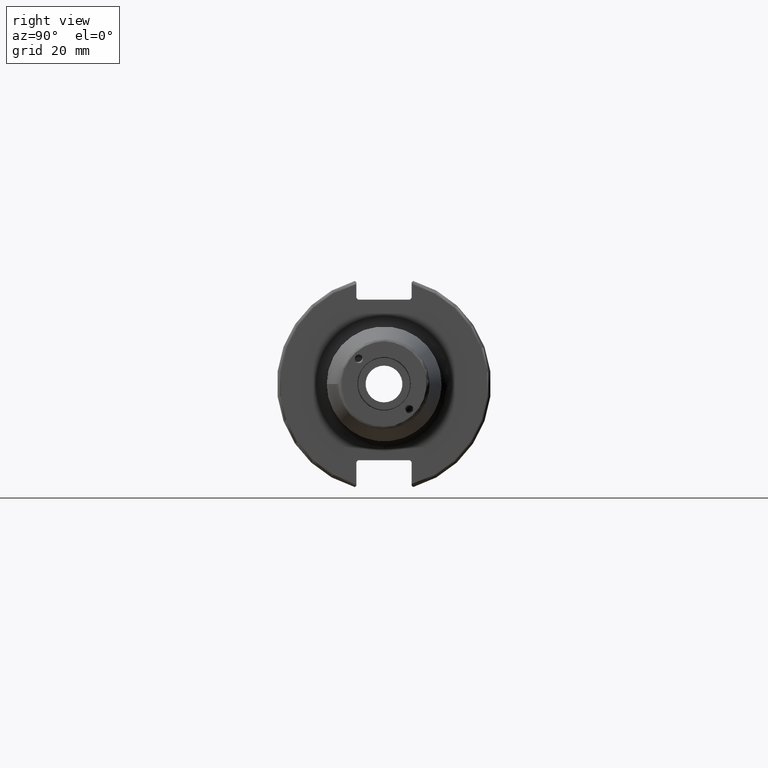
[diagram: clean part render]
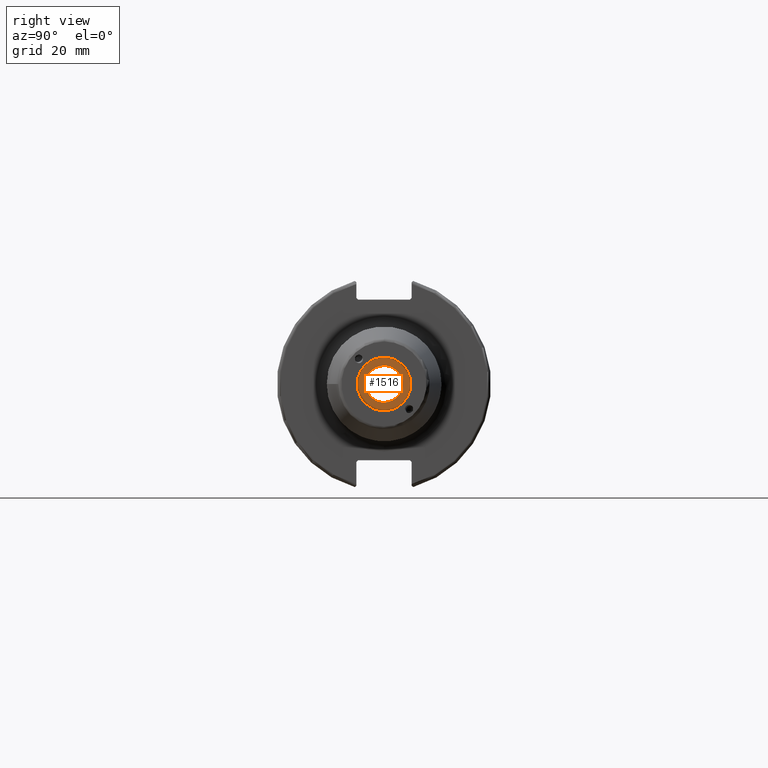
[diagram: same view with one face highlighted and labeled with its STEP entity id]
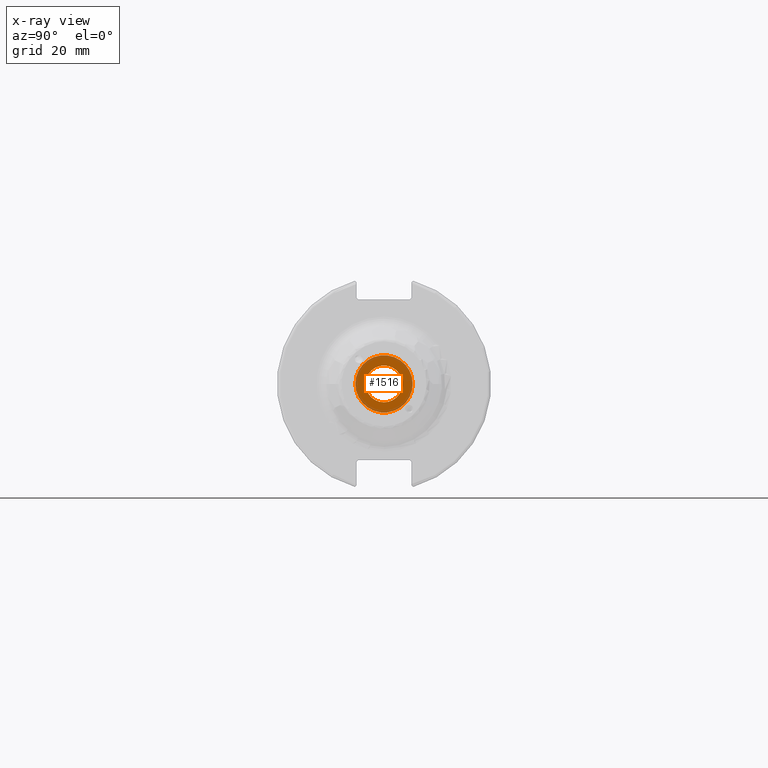
[diagram: x-ray of the same camera — body ghosted, the highlighted face saturated]
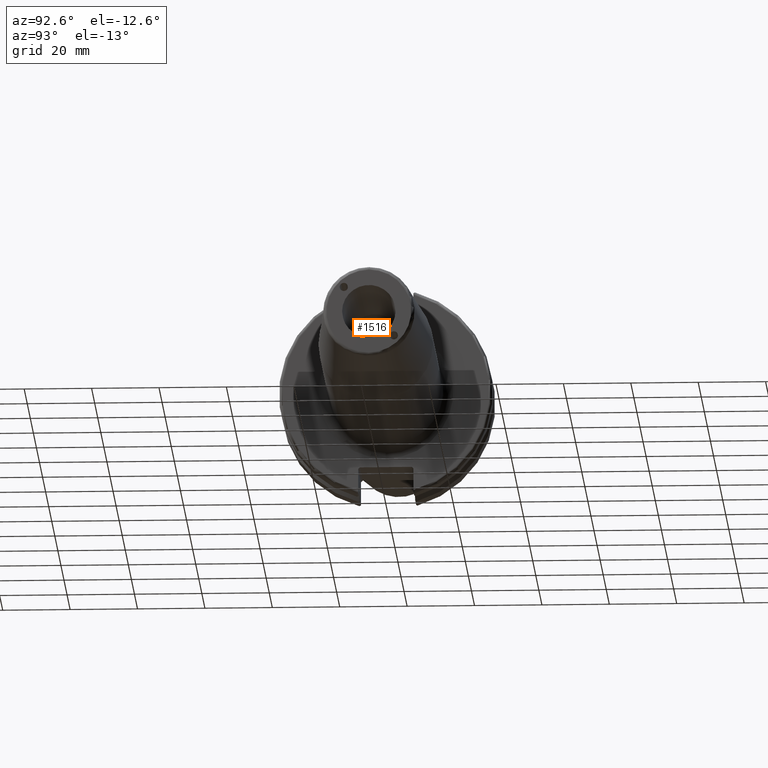
[diagram: same view with one face highlighted and labeled with its STEP entity id]
A machine part, right view. The second image highlights one B-rep face of the part: STEP entity #1516.
The next image is the same camera in x-ray: the body ghosted, the highlighted face saturated — about 22% of this face is hidden behind the body in this view.
A second angle (auxiliary view) of the same face is appended — the face is thin or edge-on in the first view.
In plain terms, the highlighted planar face has unit normal (1, 0, 0).
Its self-contained STEP definition (entity closure, byte-faithful):
#70=FACE_BOUND('',#287,.T.);
#84=PLANE('',#1651);
#191=FACE_OUTER_BOUND('',#286,.T.);
#286=EDGE_LOOP('',(#1097));
#287=EDGE_LOOP('',(#1098));
#569=CIRCLE('',#1638,5.4585);
#576=CIRCLE('',#1650,8.49999999999999);
#654=VERTEX_POINT('',#2319);
#665=VERTEX_POINT('',#2418);
#816=EDGE_CURVE('',#654,#654,#569,.T.);
#832=EDGE_CURVE('',#665,#665,#576,.T.);
#1097=ORIENTED_EDGE('',*,*,#832,.T.);
#1098=ORIENTED_EDGE('',*,*,#816,.T.);
#1516=ADVANCED_FACE('',(#191,#70),#84,.T.);
#1638=AXIS2_PLACEMENT_3D('',#2320,#1864,#1865);
#1650=AXIS2_PLACEMENT_3D('',#2420,#1893,#1894);
#1651=AXIS2_PLACEMENT_3D('',#2421,#1895,#1896);
#1864=DIRECTION('center_axis',(-1.,0.,0.));
#1865=DIRECTION('ref_axis',(0.,0.,-1.));
#1893=DIRECTION('center_axis',(1.,0.,0.));
#1894=DIRECTION('ref_axis',(0.,0.,-1.));
#1895=DIRECTION('center_axis',(1.,0.,0.));
#1896=DIRECTION('ref_axis',(0.,0.,-1.));
#2319=CARTESIAN_POINT('',(78.,-6.68473455314583E-16,5.4585));
#2320=CARTESIAN_POINT('Origin',(78.,0.,0.));
#2418=CARTESIAN_POINT('',(78.,-8.49999999999999,-1.04094977927525E-15));
#2420=CARTESIAN_POINT('Origin',(78.,0.,0.));
#2421=CARTESIAN_POINT('Origin',(78.,0.,0.));